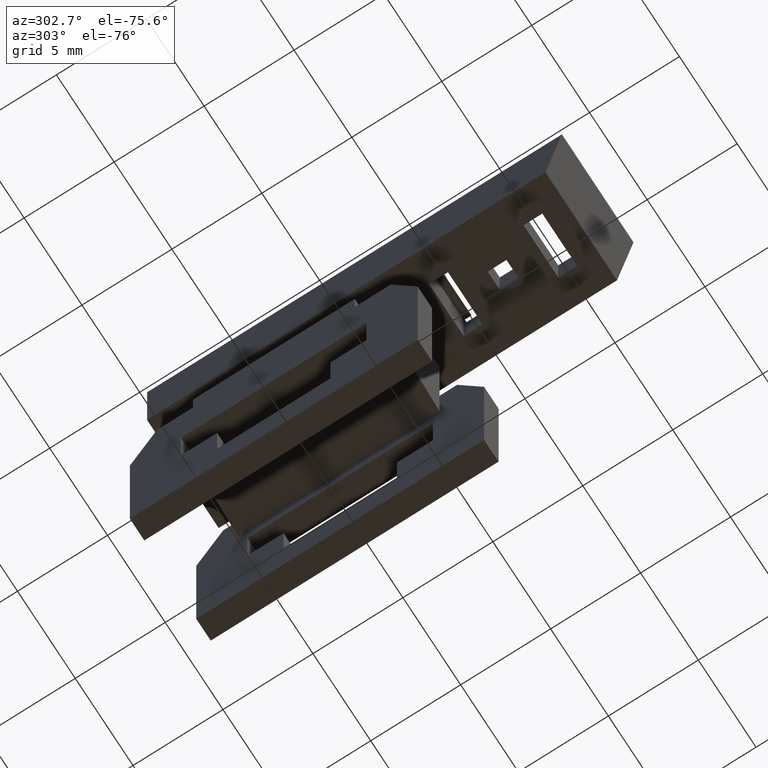
[diagram: clean part render]
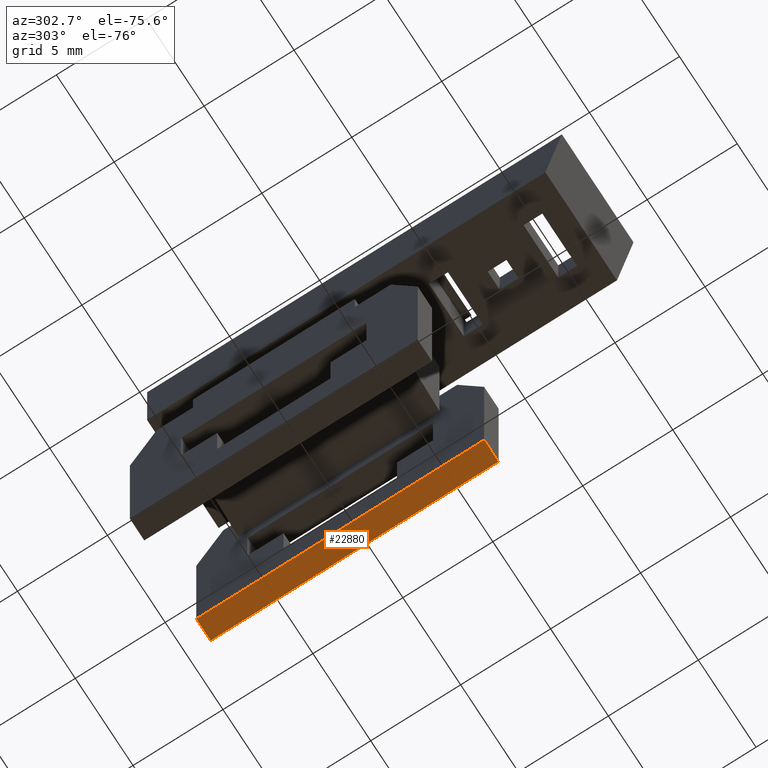
[diagram: same view with one face highlighted and labeled with its STEP entity id]
A machine part, auxiliary view. The second image highlights one B-rep face of the part: STEP entity #22880.
In plain terms, the highlighted planar face has unit normal (0, 0, -1).
Its self-contained STEP definition (entity closure, byte-faithful):
#19460=CARTESIAN_POINT('',(0.,5.5,0.));
#19470=DIRECTION('',(0.,0.,1.));
#19480=VECTOR('',#19470,1.);
#19490=LINE('',#19460,#19480);
#19500=CARTESIAN_POINT('',(0.,5.5,0.));
#19510=VERTEX_POINT('',#19500);
#19520=CARTESIAN_POINT('',(0.,5.5,16.));
#19530=VERTEX_POINT('',#19520);
#19540=EDGE_CURVE('',#19510,#19530,#19490,.T.);
#21510=CARTESIAN_POINT('',(-1.25,5.5,0.));
#21520=VERTEX_POINT('',#21510);
#21800=CARTESIAN_POINT('',(-1.25,5.5,16.));
#21810=VERTEX_POINT('',#21800);
#21840=CARTESIAN_POINT('',(-1.25,5.5,0.));
#21850=DIRECTION('',(0.,0.,1.));
#21860=VECTOR('',#21850,1.);
#21870=LINE('',#21840,#21860);
#21880=EDGE_CURVE('',#21520,#21810,#21870,.T.);
#22530=CARTESIAN_POINT('',(0.,5.5,0.));
#22540=DIRECTION('',(-1.,0.,0.));
#22550=VECTOR('',#22540,1.);
#22560=LINE('',#22530,#22550);
#22570=EDGE_CURVE('',#19510,#21520,#22560,.T.);
#22720=CARTESIAN_POINT('',(0.,5.5,0.));
#22730=DIRECTION('',(-0.,-1.,-0.));
#22740=DIRECTION('',(-1.,0.,0.));
#22750=AXIS2_PLACEMENT_3D('',#22720,#22730,#22740);
#22760=PLANE('',#22750);
#22770=ORIENTED_EDGE('',*,*,#21880,.F.);
#22780=CARTESIAN_POINT('',(0.,5.5,16.));
#22790=DIRECTION('',(-1.,0.,0.));
#22800=VECTOR('',#22790,1.);
#22810=LINE('',#22780,#22800);
#22820=EDGE_CURVE('',#19530,#21810,#22810,.T.);
#22830=ORIENTED_EDGE('',*,*,#22820,.T.);
#22840=ORIENTED_EDGE('',*,*,#19540,.T.);
#22850=ORIENTED_EDGE('',*,*,#22570,.F.);
#22860=EDGE_LOOP('',(#22850,#22840,#22830,#22770));
#22870=FACE_OUTER_BOUND('',#22860,.T.);
#22880=ADVANCED_FACE('',(#22870),#22760,.T.);